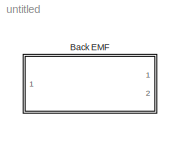
MODEL untitled
KIND model
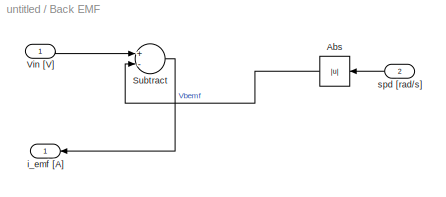
BLOCK [SubSystem] Back EMF
  Ports = [2, 1]
  RequestExecContextInheritance = off
  SID = 1
  TreatAsAtomicUnit = on
BLOCK [Abs] Back EMF/Abs
  SID = 4
  SaturateOnIntegerOverflow = off
BLOCK [Sum] Back EMF/Subtract
  InputSameDT = off
  Inputs = +-
  OutDataTypeStr = Inherit: Inherit via internal rule
  Ports = [2, 1]
  SID = 5
  SaturateOnIntegerOverflow = off
BLOCK [Inport] Back EMF/Vin [V]
  IconDisplay = Port number
  SID = 2
  VarSizeSig = Yes
BLOCK [Outport] Back EMF/i_emf [A]
  IconDisplay = Port number
  SID = 6
BLOCK [Inport] Back EMF/spd [rad//s]
  IconDisplay = Port number
  Port = 2
  SID = 3
LINE Back EMF/Abs:1 -> Back EMF/Subtract:2
LINE Back EMF/Subtract:1 -> Back EMF/i_emf [A]:1
LINE Back EMF/Vin [V]:1 -> Back EMF/Subtract:1
LINE Back EMF/spd [rad//s]:1 -> Back EMF/Abs:1
